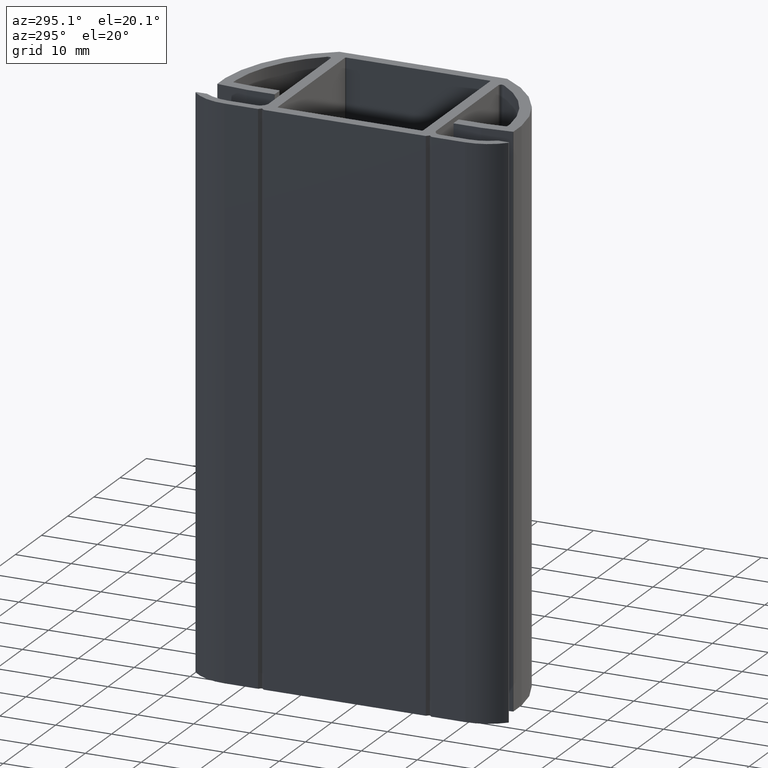
[diagram: clean part render]
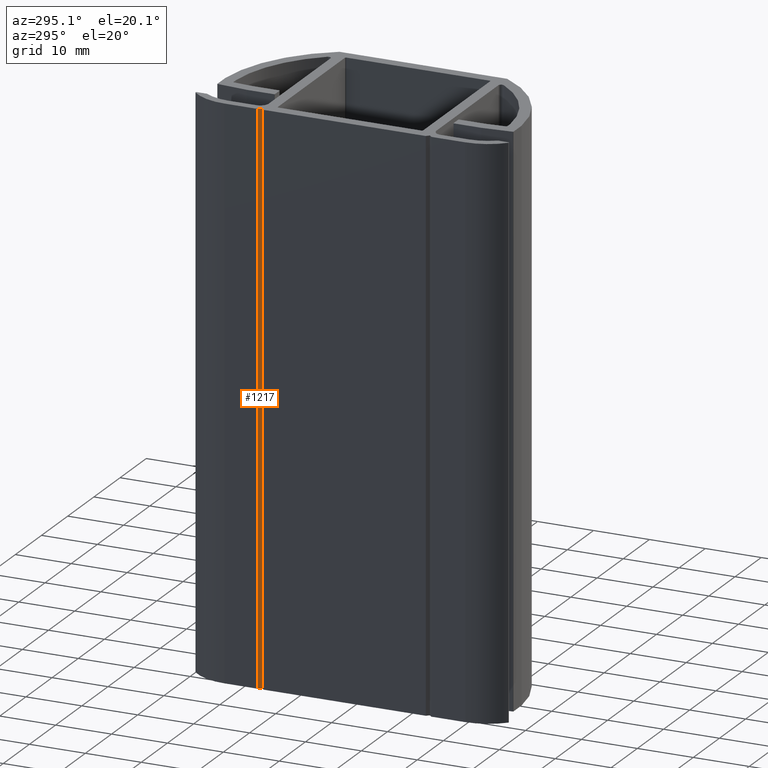
[diagram: same view with one face highlighted and labeled with its STEP entity id]
A machine part, auxiliary view. The second image highlights one B-rep face of the part: STEP entity #1217.
In plain terms, the highlighted planar face has unit normal (-0.7094, -0.7048, 0).
Its self-contained STEP definition (entity closure, byte-faithful):
#23=PLANE($,#1316);
#62=FACE_OUTER_BOUND($,#126,.T.);
#126=EDGE_LOOP($,(#905,#906,#907,#908));
#255=LINE($,#1822,#385);
#285=LINE($,#1929,#415);
#286=LINE($,#1932,#416);
#287=LINE($,#1933,#417);
#385=VECTOR($,#1448,0.70940806797759);
#415=VECTOR($,#1528,100.);
#416=VECTOR($,#1531,0.70940806797759);
#417=VECTOR($,#1532,100.);
#515=VERTEX_POINT($,#1819);
#516=VERTEX_POINT($,#1821);
#568=VERTEX_POINT($,#1927);
#569=VERTEX_POINT($,#1931);
#647=EDGE_CURVE($,#515,#516,#255,.T.);
#701=EDGE_CURVE($,#515,#568,#285,.T.);
#702=EDGE_CURVE($,#569,#568,#286,.T.);
#703=EDGE_CURVE($,#516,#569,#287,.T.);
#905=ORIENTED_EDGE($,*,*,#701,.T.);
#906=ORIENTED_EDGE($,*,*,#702,.F.);
#907=ORIENTED_EDGE($,*,*,#703,.F.);
#908=ORIENTED_EDGE($,*,*,#647,.F.);
#1217=ADVANCED_FACE($,(#62),#23,.T.);
#1316=AXIS2_PLACEMENT_3D($,#1930,#1529,#1530);
#1448=DIRECTION($,(-0.704812959664123,0.709393185680197,0.));
#1528=DIRECTION($,(0.,0.,1.));
#1529=DIRECTION('center_axis',(-0.709393185680197,-0.704812959664124,0.));
#1530=DIRECTION('ref_axis',(0.704812959664124,-0.709393185680197,0.));
#1531=DIRECTION($,(0.704812959664123,-0.709393185680197,0.));
#1532=DIRECTION($,(0.,0.,1.));
#1819=CARTESIAN_POINT('',(-14.4999999999994,15.0000000000004,-50.));
#1821=CARTESIAN_POINT('',(-15.0000000000003,15.5032492492903,-50.));
#1822=CARTESIAN_POINT($,(-15.0000000000003,15.5032492492903,-50.));
#1927=CARTESIAN_POINT('',(-14.4999999999994,15.0000000000004,50.));
#1929=CARTESIAN_POINT($,(-14.4999999999994,15.0000000000004,0.));
#1930=CARTESIAN_POINT('Origin',(-15.0000000000003,15.5032492492903,0.));
#1931=CARTESIAN_POINT('',(-15.0000000000003,15.5032492492903,50.));
#1932=CARTESIAN_POINT($,(-15.0000000000003,15.5032492492903,50.));
#1933=CARTESIAN_POINT($,(-15.0000000000003,15.5032492492903,0.));